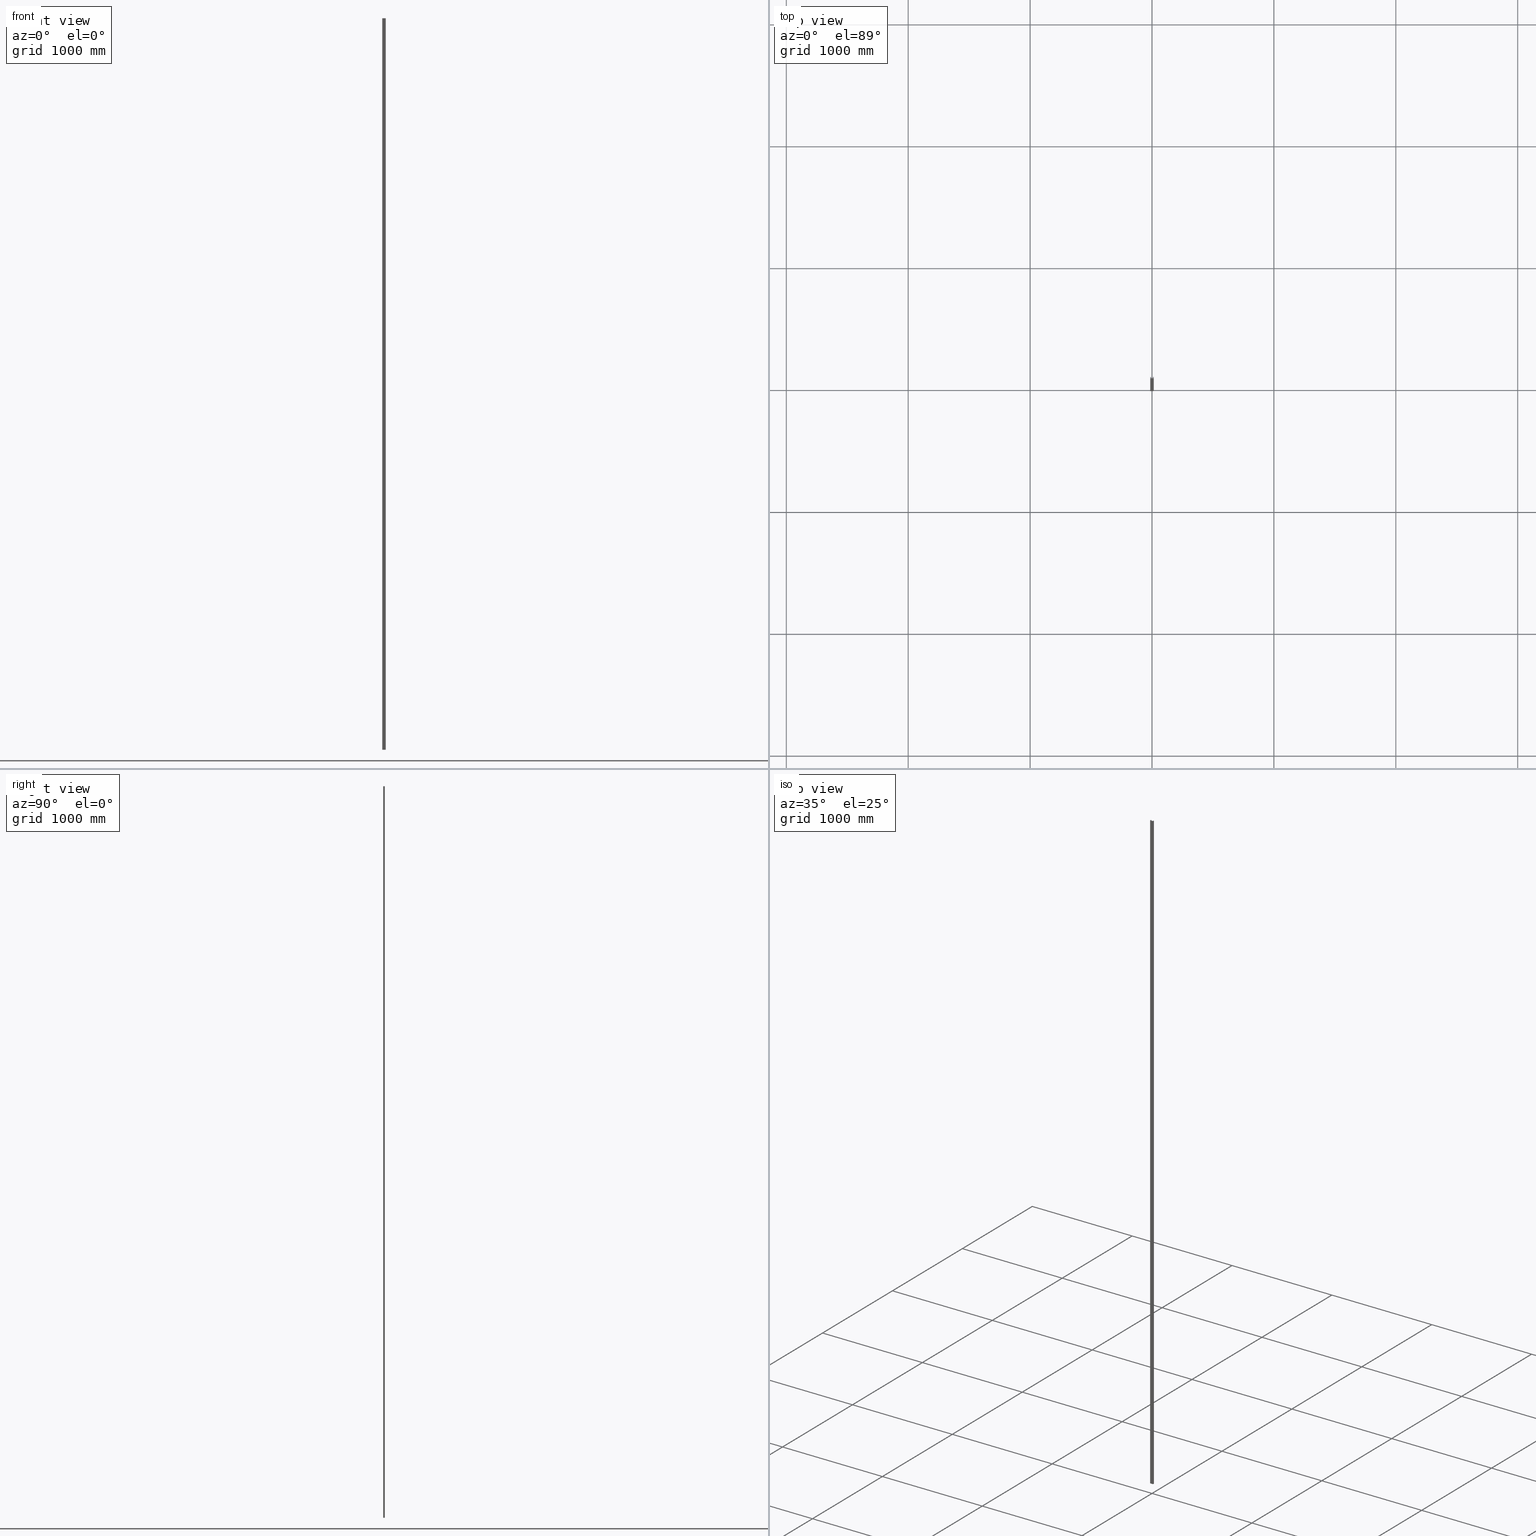
[diagram: canonical four-view strip — front | top / right | iso, engineering-drawing reading convention]
A machine part, canonical four-view strip (front | top / right | iso — engineering-drawing reading convention). The complete STEP part file that produces these views, byte-faithful:
ISO-10303-21;
HEADER;
/* Generated by software containing ST-Developer
 * from STEP Tools, Inc. (www.steptools.com) 
 */

FILE_DESCRIPTION(
/* description */ ('GUIDA LINEARE IL28 COMPLETA DI TONDINO'),
/* implementation_level */ '2;1');

FILE_NAME(
/* name */ 
'C:\\Users\\tecnico7\\Desktop\\NUOVI DISEGNI 3D\\bprgdd0000012.stp',
/* time_stamp */ '2022-12-07T15:51:20+01:00',
/* author */ ('tecnico7'),
/* organization */ (''),
/* preprocessor_version */ 'ST-DEVELOPER v18.1',
/* originating_system */ 'Autodesk Inventor 2022',
/* authorisation */ '');

FILE_SCHEMA (('AUTOMOTIVE_DESIGN { 1 0 10303 214 3 1 1 }'));
ENDSEC;

DATA;
#10=MECHANICAL_DESIGN_GEOMETRIC_PRESENTATION_REPRESENTATION('',(#27,#28),
#803);
#11=ITEM_DEFINED_TRANSFORMATION($,$,#493,#536);
#12=ITEM_DEFINED_TRANSFORMATION($,$,#530,#537);
#13=ITEM_DEFINED_TRANSFORMATION($,$,#530,#538);
#14=(
REPRESENTATION_RELATIONSHIP($,$,#818,#817)
REPRESENTATION_RELATIONSHIP_WITH_TRANSFORMATION(#11)
SHAPE_REPRESENTATION_RELATIONSHIP()
);
#15=(
REPRESENTATION_RELATIONSHIP($,$,#819,#817)
REPRESENTATION_RELATIONSHIP_WITH_TRANSFORMATION(#12)
SHAPE_REPRESENTATION_RELATIONSHIP()
);
#16=(
REPRESENTATION_RELATIONSHIP($,$,#819,#817)
REPRESENTATION_RELATIONSHIP_WITH_TRANSFORMATION(#13)
SHAPE_REPRESENTATION_RELATIONSHIP()
);
#17=CONTEXT_DEPENDENT_SHAPE_REPRESENTATION(#14,#814);
#18=CONTEXT_DEPENDENT_SHAPE_REPRESENTATION(#15,#815);
#19=CONTEXT_DEPENDENT_SHAPE_REPRESENTATION(#16,#816);
#20=NEXT_ASSEMBLY_USAGE_OCCURRENCE('DM01.2813.00A:1','DM01.2813.00A:1',
'DM01.2813.00A:1',#821,#822,'DM01.2813.00A:1');
#21=NEXT_ASSEMBLY_USAGE_OCCURRENCE('959540008104:1','959540008104:1',
'959540008104:1',#821,#823,'959540008104:1');
#22=NEXT_ASSEMBLY_USAGE_OCCURRENCE('959540008104:2','959540008104:2',
'959540008104:2',#821,#823,'959540008104:2');
#23=SHAPE_REPRESENTATION_RELATIONSHIP('SRR','None',#818,#25);
#24=SHAPE_REPRESENTATION_RELATIONSHIP('SRR','None',#819,#26);
#25=ADVANCED_BREP_SHAPE_REPRESENTATION('',(#29),#801);
#26=ADVANCED_BREP_SHAPE_REPRESENTATION('',(#30),#802);
#27=STYLED_ITEM('',(#456),#29);
#28=STYLED_ITEM('',(#457),#30);
#29=MANIFOLD_SOLID_BREP('Solido3',#428);
#30=MANIFOLD_SOLID_BREP('Solido1',#429);
#31=PLANE('',#497);
#32=PLANE('',#501);
#33=PLANE('',#508);
#34=PLANE('',#509);
#35=PLANE('',#516);
#36=PLANE('',#517);
#37=PLANE('',#520);
#38=PLANE('',#523);
#39=PLANE('',#526);
#40=PLANE('',#527);
#41=PLANE('',#528);
#42=PLANE('',#529);
#43=PLANE('',#531);
#44=PLANE('',#535);
#45=FACE_OUTER_BOUND('',#68,.T.);
#46=FACE_OUTER_BOUND('',#69,.T.);
#47=FACE_OUTER_BOUND('',#70,.T.);
#48=FACE_OUTER_BOUND('',#71,.T.);
#49=FACE_OUTER_BOUND('',#72,.T.);
#50=FACE_OUTER_BOUND('',#73,.T.);
#51=FACE_OUTER_BOUND('',#74,.T.);
#52=FACE_OUTER_BOUND('',#75,.T.);
#53=FACE_OUTER_BOUND('',#76,.T.);
#54=FACE_OUTER_BOUND('',#77,.T.);
#55=FACE_OUTER_BOUND('',#78,.T.);
#56=FACE_OUTER_BOUND('',#79,.T.);
#57=FACE_OUTER_BOUND('',#80,.T.);
#58=FACE_OUTER_BOUND('',#81,.T.);
#59=FACE_OUTER_BOUND('',#82,.T.);
#60=FACE_OUTER_BOUND('',#83,.T.);
#61=FACE_OUTER_BOUND('',#84,.T.);
#62=FACE_OUTER_BOUND('',#85,.T.);
#63=FACE_OUTER_BOUND('',#86,.T.);
#64=FACE_OUTER_BOUND('',#87,.T.);
#65=FACE_OUTER_BOUND('',#88,.T.);
#66=FACE_OUTER_BOUND('',#89,.T.);
#67=FACE_OUTER_BOUND('',#90,.T.);
#68=EDGE_LOOP('',(#282,#283,#284,#285));
#69=EDGE_LOOP('',(#286,#287,#288,#289));
#70=EDGE_LOOP('',(#290,#291,#292,#293));
#71=EDGE_LOOP('',(#294,#295,#296,#297));
#72=EDGE_LOOP('',(#298,#299,#300,#301));
#73=EDGE_LOOP('',(#302,#303,#304,#305));
#74=EDGE_LOOP('',(#306,#307,#308,#309));
#75=EDGE_LOOP('',(#310,#311,#312,#313));
#76=EDGE_LOOP('',(#314,#315,#316,#317));
#77=EDGE_LOOP('',(#318,#319,#320,#321));
#78=EDGE_LOOP('',(#322,#323,#324,#325));
#79=EDGE_LOOP('',(#326,#327,#328,#329,#330,#331,#332,#333,#334,#335,#336,
#337,#338,#339,#340,#341,#342,#343));
#80=EDGE_LOOP('',(#344,#345,#346,#347,#348,#349,#350,#351,#352,#353,#354,
#355,#356,#357,#358,#359,#360,#361));
#81=EDGE_LOOP('',(#362,#363,#364,#365));
#82=EDGE_LOOP('',(#366,#367,#368,#369));
#83=EDGE_LOOP('',(#370,#371,#372,#373));
#84=EDGE_LOOP('',(#374,#375,#376,#377));
#85=EDGE_LOOP('',(#378,#379,#380,#381));
#86=EDGE_LOOP('',(#382,#383,#384,#385));
#87=EDGE_LOOP('',(#386,#387,#388,#389));
#88=EDGE_LOOP('',(#390));
#89=EDGE_LOOP('',(#391,#392,#393,#394));
#90=EDGE_LOOP('',(#395));
#91=LINE('',#679,#130);
#92=LINE('',#682,#131);
#93=LINE('',#685,#132);
#94=LINE('',#687,#133);
#95=LINE('',#688,#134);
#96=LINE('',#693,#135);
#97=LINE('',#697,#136);
#98=LINE('',#699,#137);
#99=LINE('',#700,#138);
#100=LINE('',#706,#139);
#101=LINE('',#709,#140);
#102=LINE('',#715,#141);
#103=LINE('',#718,#142);
#104=LINE('',#720,#143);
#105=LINE('',#721,#144);
#106=LINE('',#725,#145);
#107=LINE('',#727,#146);
#108=LINE('',#729,#147);
#109=LINE('',#730,#148);
#110=LINE('',#736,#149);
#111=LINE('',#739,#150);
#112=LINE('',#745,#151);
#113=LINE('',#747,#152);
#114=LINE('',#748,#153);
#115=LINE('',#752,#154);
#116=LINE('',#755,#155);
#117=LINE('',#757,#156);
#118=LINE('',#759,#157);
#119=LINE('',#760,#158);
#120=LINE('',#763,#159);
#121=LINE('',#765,#160);
#122=LINE('',#767,#161);
#123=LINE('',#768,#162);
#124=LINE('',#771,#163);
#125=LINE('',#774,#164);
#126=LINE('',#778,#165);
#127=LINE('',#780,#166);
#128=LINE('',#782,#167);
#129=LINE('',#791,#168);
#130=VECTOR('',#547,10.);
#131=VECTOR('',#550,10.);
#132=VECTOR('',#553,10.);
#133=VECTOR('',#554,10.);
#134=VECTOR('',#555,10.);
#135=VECTOR('',#560,10.);
#136=VECTOR('',#565,10.);
#137=VECTOR('',#566,10.);
#138=VECTOR('',#567,10.);
#139=VECTOR('',#572,10.);
#140=VECTOR('',#575,10.);
#141=VECTOR('',#582,10.);
#142=VECTOR('',#585,10.);
#143=VECTOR('',#586,10.);
#144=VECTOR('',#587,10.);
#145=VECTOR('',#590,10.);
#146=VECTOR('',#591,10.);
#147=VECTOR('',#592,10.);
#148=VECTOR('',#593,10.);
#149=VECTOR('',#598,10.);
#150=VECTOR('',#601,10.);
#151=VECTOR('',#610,10.);
#152=VECTOR('',#611,10.);
#153=VECTOR('',#612,10.);
#154=VECTOR('',#617,10.);
#155=VECTOR('',#620,10.);
#156=VECTOR('',#621,10.);
#157=VECTOR('',#622,10.);
#158=VECTOR('',#623,10.);
#159=VECTOR('',#626,10.);
#160=VECTOR('',#627,10.);
#161=VECTOR('',#628,10.);
#162=VECTOR('',#629,10.);
#163=VECTOR('',#632,10.);
#164=VECTOR('',#637,10.);
#165=VECTOR('',#644,10.);
#166=VECTOR('',#647,10.);
#167=VECTOR('',#650,10.);
#168=VECTOR('',#663,2.);
#169=CIRCLE('',#495,0.2);
#170=CIRCLE('',#496,0.2);
#171=CIRCLE('',#499,0.2);
#172=CIRCLE('',#500,0.2);
#173=CIRCLE('',#503,1.9);
#174=CIRCLE('',#504,1.9);
#175=CIRCLE('',#506,18.3999999999998);
#176=CIRCLE('',#507,18.3999999999998);
#177=CIRCLE('',#511,18.3999999999998);
#178=CIRCLE('',#512,18.3999999999998);
#179=CIRCLE('',#514,1.9);
#180=CIRCLE('',#515,1.9);
#181=CIRCLE('',#518,2.);
#182=CIRCLE('',#519,2.);
#183=CIRCLE('',#521,2.);
#184=CIRCLE('',#522,2.);
#185=CIRCLE('',#532,2.);
#186=CIRCLE('',#534,2.);
#187=VERTEX_POINT('',#675);
#188=VERTEX_POINT('',#676);
#189=VERTEX_POINT('',#678);
#190=VERTEX_POINT('',#680);
#191=VERTEX_POINT('',#684);
#192=VERTEX_POINT('',#686);
#193=VERTEX_POINT('',#690);
#194=VERTEX_POINT('',#692);
#195=VERTEX_POINT('',#696);
#196=VERTEX_POINT('',#698);
#197=VERTEX_POINT('',#702);
#198=VERTEX_POINT('',#703);
#199=VERTEX_POINT('',#705);
#200=VERTEX_POINT('',#707);
#201=VERTEX_POINT('',#711);
#202=VERTEX_POINT('',#713);
#203=VERTEX_POINT('',#717);
#204=VERTEX_POINT('',#719);
#205=VERTEX_POINT('',#723);
#206=VERTEX_POINT('',#724);
#207=VERTEX_POINT('',#726);
#208=VERTEX_POINT('',#728);
#209=VERTEX_POINT('',#732);
#210=VERTEX_POINT('',#733);
#211=VERTEX_POINT('',#735);
#212=VERTEX_POINT('',#737);
#213=VERTEX_POINT('',#744);
#214=VERTEX_POINT('',#746);
#215=VERTEX_POINT('',#751);
#216=VERTEX_POINT('',#754);
#217=VERTEX_POINT('',#756);
#218=VERTEX_POINT('',#758);
#219=VERTEX_POINT('',#762);
#220=VERTEX_POINT('',#764);
#221=VERTEX_POINT('',#766);
#222=VERTEX_POINT('',#769);
#223=VERTEX_POINT('',#786);
#224=VERTEX_POINT('',#789);
#225=EDGE_CURVE('',#187,#188,#169,.T.);
#226=EDGE_CURVE('',#188,#189,#91,.T.);
#227=EDGE_CURVE('',#189,#190,#170,.T.);
#228=EDGE_CURVE('',#190,#187,#92,.T.);
#229=EDGE_CURVE('',#191,#188,#93,.T.);
#230=EDGE_CURVE('',#192,#191,#94,.T.);
#231=EDGE_CURVE('',#189,#192,#95,.T.);
#232=EDGE_CURVE('',#191,#193,#171,.T.);
#233=EDGE_CURVE('',#193,#194,#96,.T.);
#234=EDGE_CURVE('',#194,#192,#172,.T.);
#235=EDGE_CURVE('',#195,#193,#97,.T.);
#236=EDGE_CURVE('',#195,#196,#98,.T.);
#237=EDGE_CURVE('',#194,#196,#99,.T.);
#238=EDGE_CURVE('',#197,#198,#173,.T.);
#239=EDGE_CURVE('',#199,#197,#100,.T.);
#240=EDGE_CURVE('',#200,#199,#174,.T.);
#241=EDGE_CURVE('',#200,#198,#101,.T.);
#242=EDGE_CURVE('',#198,#201,#175,.T.);
#243=EDGE_CURVE('',#202,#200,#176,.T.);
#244=EDGE_CURVE('',#201,#202,#102,.T.);
#245=EDGE_CURVE('',#203,#197,#103,.T.);
#246=EDGE_CURVE('',#203,#204,#104,.T.);
#247=EDGE_CURVE('',#199,#204,#105,.T.);
#248=EDGE_CURVE('',#205,#206,#106,.T.);
#249=EDGE_CURVE('',#207,#205,#107,.T.);
#250=EDGE_CURVE('',#208,#207,#108,.T.);
#251=EDGE_CURVE('',#208,#206,#109,.T.);
#252=EDGE_CURVE('',#209,#210,#177,.T.);
#253=EDGE_CURVE('',#211,#209,#110,.T.);
#254=EDGE_CURVE('',#212,#211,#178,.T.);
#255=EDGE_CURVE('',#212,#210,#111,.T.);
#256=EDGE_CURVE('',#210,#205,#179,.T.);
#257=EDGE_CURVE('',#207,#212,#180,.T.);
#258=EDGE_CURVE('',#213,#209,#112,.T.);
#259=EDGE_CURVE('',#214,#213,#113,.T.);
#260=EDGE_CURVE('',#211,#214,#114,.T.);
#261=EDGE_CURVE('',#204,#195,#181,.T.);
#262=EDGE_CURVE('',#187,#215,#115,.T.);
#263=EDGE_CURVE('',#215,#208,#182,.T.);
#264=EDGE_CURVE('',#214,#216,#116,.T.);
#265=EDGE_CURVE('',#216,#217,#117,.T.);
#266=EDGE_CURVE('',#217,#218,#118,.T.);
#267=EDGE_CURVE('',#218,#202,#119,.T.);
#268=EDGE_CURVE('',#201,#219,#120,.T.);
#269=EDGE_CURVE('',#219,#220,#121,.T.);
#270=EDGE_CURVE('',#220,#221,#122,.T.);
#271=EDGE_CURVE('',#221,#213,#123,.T.);
#272=EDGE_CURVE('',#206,#222,#183,.T.);
#273=EDGE_CURVE('',#222,#190,#124,.T.);
#274=EDGE_CURVE('',#196,#203,#184,.T.);
#275=EDGE_CURVE('',#222,#215,#125,.T.);
#276=EDGE_CURVE('',#218,#219,#126,.T.);
#277=EDGE_CURVE('',#216,#221,#127,.T.);
#278=EDGE_CURVE('',#220,#217,#128,.T.);
#279=EDGE_CURVE('',#223,#223,#185,.T.);
#280=EDGE_CURVE('',#224,#224,#186,.T.);
#281=EDGE_CURVE('',#224,#223,#129,.T.);
#282=ORIENTED_EDGE('',*,*,#225,.T.);
#283=ORIENTED_EDGE('',*,*,#226,.T.);
#284=ORIENTED_EDGE('',*,*,#227,.T.);
#285=ORIENTED_EDGE('',*,*,#228,.T.);
#286=ORIENTED_EDGE('',*,*,#226,.F.);
#287=ORIENTED_EDGE('',*,*,#229,.F.);
#288=ORIENTED_EDGE('',*,*,#230,.F.);
#289=ORIENTED_EDGE('',*,*,#231,.F.);
#290=ORIENTED_EDGE('',*,*,#232,.T.);
#291=ORIENTED_EDGE('',*,*,#233,.T.);
#292=ORIENTED_EDGE('',*,*,#234,.T.);
#293=ORIENTED_EDGE('',*,*,#230,.T.);
#294=ORIENTED_EDGE('',*,*,#233,.F.);
#295=ORIENTED_EDGE('',*,*,#235,.F.);
#296=ORIENTED_EDGE('',*,*,#236,.T.);
#297=ORIENTED_EDGE('',*,*,#237,.F.);
#298=ORIENTED_EDGE('',*,*,#238,.F.);
#299=ORIENTED_EDGE('',*,*,#239,.F.);
#300=ORIENTED_EDGE('',*,*,#240,.F.);
#301=ORIENTED_EDGE('',*,*,#241,.T.);
#302=ORIENTED_EDGE('',*,*,#242,.F.);
#303=ORIENTED_EDGE('',*,*,#241,.F.);
#304=ORIENTED_EDGE('',*,*,#243,.F.);
#305=ORIENTED_EDGE('',*,*,#244,.F.);
#306=ORIENTED_EDGE('',*,*,#245,.F.);
#307=ORIENTED_EDGE('',*,*,#246,.T.);
#308=ORIENTED_EDGE('',*,*,#247,.F.);
#309=ORIENTED_EDGE('',*,*,#239,.T.);
#310=ORIENTED_EDGE('',*,*,#248,.F.);
#311=ORIENTED_EDGE('',*,*,#249,.F.);
#312=ORIENTED_EDGE('',*,*,#250,.F.);
#313=ORIENTED_EDGE('',*,*,#251,.T.);
#314=ORIENTED_EDGE('',*,*,#252,.F.);
#315=ORIENTED_EDGE('',*,*,#253,.F.);
#316=ORIENTED_EDGE('',*,*,#254,.F.);
#317=ORIENTED_EDGE('',*,*,#255,.T.);
#318=ORIENTED_EDGE('',*,*,#256,.F.);
#319=ORIENTED_EDGE('',*,*,#255,.F.);
#320=ORIENTED_EDGE('',*,*,#257,.F.);
#321=ORIENTED_EDGE('',*,*,#249,.T.);
#322=ORIENTED_EDGE('',*,*,#253,.T.);
#323=ORIENTED_EDGE('',*,*,#258,.F.);
#324=ORIENTED_EDGE('',*,*,#259,.F.);
#325=ORIENTED_EDGE('',*,*,#260,.F.);
#326=ORIENTED_EDGE('',*,*,#243,.T.);
#327=ORIENTED_EDGE('',*,*,#240,.T.);
#328=ORIENTED_EDGE('',*,*,#247,.T.);
#329=ORIENTED_EDGE('',*,*,#261,.T.);
#330=ORIENTED_EDGE('',*,*,#235,.T.);
#331=ORIENTED_EDGE('',*,*,#232,.F.);
#332=ORIENTED_EDGE('',*,*,#229,.T.);
#333=ORIENTED_EDGE('',*,*,#225,.F.);
#334=ORIENTED_EDGE('',*,*,#262,.T.);
#335=ORIENTED_EDGE('',*,*,#263,.T.);
#336=ORIENTED_EDGE('',*,*,#250,.T.);
#337=ORIENTED_EDGE('',*,*,#257,.T.);
#338=ORIENTED_EDGE('',*,*,#254,.T.);
#339=ORIENTED_EDGE('',*,*,#260,.T.);
#340=ORIENTED_EDGE('',*,*,#264,.T.);
#341=ORIENTED_EDGE('',*,*,#265,.T.);
#342=ORIENTED_EDGE('',*,*,#266,.T.);
#343=ORIENTED_EDGE('',*,*,#267,.T.);
#344=ORIENTED_EDGE('',*,*,#245,.T.);
#345=ORIENTED_EDGE('',*,*,#238,.T.);
#346=ORIENTED_EDGE('',*,*,#242,.T.);
#347=ORIENTED_EDGE('',*,*,#268,.T.);
#348=ORIENTED_EDGE('',*,*,#269,.T.);
#349=ORIENTED_EDGE('',*,*,#270,.T.);
#350=ORIENTED_EDGE('',*,*,#271,.T.);
#351=ORIENTED_EDGE('',*,*,#258,.T.);
#352=ORIENTED_EDGE('',*,*,#252,.T.);
#353=ORIENTED_EDGE('',*,*,#256,.T.);
#354=ORIENTED_EDGE('',*,*,#248,.T.);
#355=ORIENTED_EDGE('',*,*,#272,.T.);
#356=ORIENTED_EDGE('',*,*,#273,.T.);
#357=ORIENTED_EDGE('',*,*,#227,.F.);
#358=ORIENTED_EDGE('',*,*,#231,.T.);
#359=ORIENTED_EDGE('',*,*,#234,.F.);
#360=ORIENTED_EDGE('',*,*,#237,.T.);
#361=ORIENTED_EDGE('',*,*,#274,.T.);
#362=ORIENTED_EDGE('',*,*,#228,.F.);
#363=ORIENTED_EDGE('',*,*,#273,.F.);
#364=ORIENTED_EDGE('',*,*,#275,.T.);
#365=ORIENTED_EDGE('',*,*,#262,.F.);
#366=ORIENTED_EDGE('',*,*,#274,.F.);
#367=ORIENTED_EDGE('',*,*,#236,.F.);
#368=ORIENTED_EDGE('',*,*,#261,.F.);
#369=ORIENTED_EDGE('',*,*,#246,.F.);
#370=ORIENTED_EDGE('',*,*,#272,.F.);
#371=ORIENTED_EDGE('',*,*,#251,.F.);
#372=ORIENTED_EDGE('',*,*,#263,.F.);
#373=ORIENTED_EDGE('',*,*,#275,.F.);
#374=ORIENTED_EDGE('',*,*,#244,.T.);
#375=ORIENTED_EDGE('',*,*,#267,.F.);
#376=ORIENTED_EDGE('',*,*,#276,.T.);
#377=ORIENTED_EDGE('',*,*,#268,.F.);
#378=ORIENTED_EDGE('',*,*,#277,.F.);
#379=ORIENTED_EDGE('',*,*,#264,.F.);
#380=ORIENTED_EDGE('',*,*,#259,.T.);
#381=ORIENTED_EDGE('',*,*,#271,.F.);
#382=ORIENTED_EDGE('',*,*,#276,.F.);
#383=ORIENTED_EDGE('',*,*,#266,.F.);
#384=ORIENTED_EDGE('',*,*,#278,.F.);
#385=ORIENTED_EDGE('',*,*,#269,.F.);
#386=ORIENTED_EDGE('',*,*,#278,.T.);
#387=ORIENTED_EDGE('',*,*,#265,.F.);
#388=ORIENTED_EDGE('',*,*,#277,.T.);
#389=ORIENTED_EDGE('',*,*,#270,.F.);
#390=ORIENTED_EDGE('',*,*,#279,.T.);
#391=ORIENTED_EDGE('',*,*,#280,.F.);
#392=ORIENTED_EDGE('',*,*,#281,.T.);
#393=ORIENTED_EDGE('',*,*,#279,.F.);
#394=ORIENTED_EDGE('',*,*,#281,.F.);
#395=ORIENTED_EDGE('',*,*,#280,.T.);
#396=CYLINDRICAL_SURFACE('',#494,0.2);
#397=CYLINDRICAL_SURFACE('',#498,0.2);
#398=CYLINDRICAL_SURFACE('',#502,1.9);
#399=CYLINDRICAL_SURFACE('',#505,18.3999999999998);
#400=CYLINDRICAL_SURFACE('',#510,18.3999999999998);
#401=CYLINDRICAL_SURFACE('',#513,1.9);
#402=CYLINDRICAL_SURFACE('',#524,2.);
#403=CYLINDRICAL_SURFACE('',#525,2.);
#404=CYLINDRICAL_SURFACE('',#533,2.);
#405=ADVANCED_FACE('',(#45),#396,.F.);
#406=ADVANCED_FACE('',(#46),#31,.F.);
#407=ADVANCED_FACE('',(#47),#397,.F.);
#408=ADVANCED_FACE('',(#48),#32,.F.);
#409=ADVANCED_FACE('',(#49),#398,.T.);
#410=ADVANCED_FACE('',(#50),#399,.T.);
#411=ADVANCED_FACE('',(#51),#33,.F.);
#412=ADVANCED_FACE('',(#52),#34,.F.);
#413=ADVANCED_FACE('',(#53),#400,.T.);
#414=ADVANCED_FACE('',(#54),#401,.T.);
#415=ADVANCED_FACE('',(#55),#35,.T.);
#416=ADVANCED_FACE('',(#56),#36,.T.);
#417=ADVANCED_FACE('',(#57),#37,.T.);
#418=ADVANCED_FACE('',(#58),#38,.F.);
#419=ADVANCED_FACE('',(#59),#402,.F.);
#420=ADVANCED_FACE('',(#60),#403,.F.);
#421=ADVANCED_FACE('',(#61),#39,.T.);
#422=ADVANCED_FACE('',(#62),#40,.T.);
#423=ADVANCED_FACE('',(#63),#41,.T.);
#424=ADVANCED_FACE('',(#64),#42,.T.);
#425=ADVANCED_FACE('',(#65),#43,.F.);
#426=ADVANCED_FACE('',(#66),#404,.T.);
#427=ADVANCED_FACE('',(#67),#44,.T.);
#428=CLOSED_SHELL('',(#405,#406,#407,#408,#409,#410,#411,#412,#413,#414,
#415,#416,#417,#418,#419,#420,#421,#422,#423,#424));
#429=CLOSED_SHELL('',(#425,#426,#427));
#430=DERIVED_UNIT_ELEMENT(#435,1.);
#431=DERIVED_UNIT_ELEMENT(#805,-3.);
#432=DERIVED_UNIT_ELEMENT(#435,1.);
#433=DERIVED_UNIT_ELEMENT(#805,-3.);
#434=DIMENSIONAL_EXPONENTS(1.,0.,0.,0.,0.,0.,0.);
#435=(
CONVERSION_BASED_UNIT('gram',#437)
MASS_UNIT()
NAMED_UNIT(#434)
);
#436=(
MASS_UNIT()
NAMED_UNIT(*)
SI_UNIT(.KILO.,.GRAM.)
);
#437=MASS_MEASURE_WITH_UNIT(MASS_MEASURE(0.001),#436);
#438=DERIVED_UNIT((#430,#431));
#439=DERIVED_UNIT((#432,#433));
#440=MEASURE_REPRESENTATION_ITEM('density measure',
POSITIVE_RATIO_MEASURE(2.7),#438);
#441=MEASURE_REPRESENTATION_ITEM('density measure',
POSITIVE_RATIO_MEASURE(7.87),#439);
#442=PROPERTY_DEFINITION_REPRESENTATION(#452,#446);
#443=PROPERTY_DEFINITION_REPRESENTATION(#453,#447);
#444=PROPERTY_DEFINITION_REPRESENTATION(#454,#448);
#445=PROPERTY_DEFINITION_REPRESENTATION(#455,#449);
#446=REPRESENTATION('material name',(#450),#801);
#447=REPRESENTATION('density',(#440),#801);
#448=REPRESENTATION('material name',(#451),#802);
#449=REPRESENTATION('density',(#441),#802);
#450=DESCRIPTIVE_REPRESENTATION_ITEM('Alluminio - 6060',
'Alluminio - 6060');
#451=DESCRIPTIVE_REPRESENTATION_ITEM('Acciaio 1 C40','Acciaio 1 C40');
#452=PROPERTY_DEFINITION('material property','material name',#822);
#453=PROPERTY_DEFINITION('material property','density of part',#822);
#454=PROPERTY_DEFINITION('material property','material name',#823);
#455=PROPERTY_DEFINITION('material property','density of part',#823);
#456=PRESENTATION_STYLE_ASSIGNMENT((#458));
#457=PRESENTATION_STYLE_ASSIGNMENT((#459));
#458=SURFACE_STYLE_USAGE(.BOTH.,#464);
#459=SURFACE_STYLE_USAGE(.BOTH.,#465);
#460=SURFACE_STYLE_RENDERING_WITH_PROPERTIES($,#472,(#462));
#461=SURFACE_STYLE_RENDERING_WITH_PROPERTIES($,#473,(#463));
#462=SURFACE_STYLE_TRANSPARENT(0.);
#463=SURFACE_STYLE_TRANSPARENT(0.);
#464=SURFACE_SIDE_STYLE('',(#466,#460));
#465=SURFACE_SIDE_STYLE('',(#467,#461));
#466=SURFACE_STYLE_FILL_AREA(#468);
#467=SURFACE_STYLE_FILL_AREA(#469);
#468=FILL_AREA_STYLE('',(#470));
#469=FILL_AREA_STYLE('',(#471));
#470=FILL_AREA_STYLE_COLOUR('',#472);
#471=FILL_AREA_STYLE_COLOUR('',#473);
#472=COLOUR_RGB('',0.698039215686274,0.698039215686274,0.698039215686274);
#473=COLOUR_RGB('',0.745098039215686,0.737254901960784,0.729411764705882);
#474=DATE_TIME_ROLE('creation_date');
#475=DATE_TIME_ROLE('creation_date');
#476=DATE_TIME_ROLE('creation_date');
#477=APPLIED_DATE_AND_TIME_ASSIGNMENT(#480,#474,(#821));
#478=APPLIED_DATE_AND_TIME_ASSIGNMENT(#481,#475,(#822));
#479=APPLIED_DATE_AND_TIME_ASSIGNMENT(#482,#476,(#823));
#480=DATE_AND_TIME(#483,#486);
#481=DATE_AND_TIME(#484,#487);
#482=DATE_AND_TIME(#485,#488);
#483=CALENDAR_DATE(2014,1,8);
#484=CALENDAR_DATE(2014,1,8);
#485=CALENDAR_DATE(2015,2,10);
#486=LOCAL_TIME(0,0,0.,#489);
#487=LOCAL_TIME(0,0,0.,#490);
#488=LOCAL_TIME(0,0,0.,#491);
#489=COORDINATED_UNIVERSAL_TIME_OFFSET(0,0,.BEHIND.);
#490=COORDINATED_UNIVERSAL_TIME_OFFSET(0,0,.BEHIND.);
#491=COORDINATED_UNIVERSAL_TIME_OFFSET(0,0,.BEHIND.);
#492=AXIS2_PLACEMENT_3D('placement',#672,#539,#540);
#493=AXIS2_PLACEMENT_3D('placement',#673,#541,#542);
#494=AXIS2_PLACEMENT_3D('',#674,#543,#544);
#495=AXIS2_PLACEMENT_3D('',#677,#545,#546);
#496=AXIS2_PLACEMENT_3D('',#681,#548,#549);
#497=AXIS2_PLACEMENT_3D('',#683,#551,#552);
#498=AXIS2_PLACEMENT_3D('',#689,#556,#557);
#499=AXIS2_PLACEMENT_3D('',#691,#558,#559);
#500=AXIS2_PLACEMENT_3D('',#694,#561,#562);
#501=AXIS2_PLACEMENT_3D('',#695,#563,#564);
#502=AXIS2_PLACEMENT_3D('',#701,#568,#569);
#503=AXIS2_PLACEMENT_3D('',#704,#570,#571);
#504=AXIS2_PLACEMENT_3D('',#708,#573,#574);
#505=AXIS2_PLACEMENT_3D('',#710,#576,#577);
#506=AXIS2_PLACEMENT_3D('',#712,#578,#579);
#507=AXIS2_PLACEMENT_3D('',#714,#580,#581);
#508=AXIS2_PLACEMENT_3D('',#716,#583,#584);
#509=AXIS2_PLACEMENT_3D('',#722,#588,#589);
#510=AXIS2_PLACEMENT_3D('',#731,#594,#595);
#511=AXIS2_PLACEMENT_3D('',#734,#596,#597);
#512=AXIS2_PLACEMENT_3D('',#738,#599,#600);
#513=AXIS2_PLACEMENT_3D('',#740,#602,#603);
#514=AXIS2_PLACEMENT_3D('',#741,#604,#605);
#515=AXIS2_PLACEMENT_3D('',#742,#606,#607);
#516=AXIS2_PLACEMENT_3D('',#743,#608,#609);
#517=AXIS2_PLACEMENT_3D('',#749,#613,#614);
#518=AXIS2_PLACEMENT_3D('',#750,#615,#616);
#519=AXIS2_PLACEMENT_3D('',#753,#618,#619);
#520=AXIS2_PLACEMENT_3D('',#761,#624,#625);
#521=AXIS2_PLACEMENT_3D('',#770,#630,#631);
#522=AXIS2_PLACEMENT_3D('',#772,#633,#634);
#523=AXIS2_PLACEMENT_3D('',#773,#635,#636);
#524=AXIS2_PLACEMENT_3D('',#775,#638,#639);
#525=AXIS2_PLACEMENT_3D('',#776,#640,#641);
#526=AXIS2_PLACEMENT_3D('',#777,#642,#643);
#527=AXIS2_PLACEMENT_3D('',#779,#645,#646);
#528=AXIS2_PLACEMENT_3D('',#781,#648,#649);
#529=AXIS2_PLACEMENT_3D('',#783,#651,#652);
#530=AXIS2_PLACEMENT_3D('placement',#784,#653,#654);
#531=AXIS2_PLACEMENT_3D('',#785,#655,#656);
#532=AXIS2_PLACEMENT_3D('',#787,#657,#658);
#533=AXIS2_PLACEMENT_3D('',#788,#659,#660);
#534=AXIS2_PLACEMENT_3D('',#790,#661,#662);
#535=AXIS2_PLACEMENT_3D('',#792,#664,#665);
#536=AXIS2_PLACEMENT_3D('',#793,#666,#667);
#537=AXIS2_PLACEMENT_3D('',#794,#668,#669);
#538=AXIS2_PLACEMENT_3D('',#795,#670,#671);
#539=DIRECTION('axis',(0.,0.,1.));
#540=DIRECTION('refdir',(1.,0.,0.));
#541=DIRECTION('axis',(0.,0.,1.));
#542=DIRECTION('refdir',(1.,0.,0.));
#543=DIRECTION('center_axis',(0.,0.,-1.));
#544=DIRECTION('ref_axis',(-0.707106781186548,-0.707106781186548,0.));
#545=DIRECTION('center_axis',(0.,0.,1.));
#546=DIRECTION('ref_axis',(-0.707106781186548,-0.707106781186548,0.));
#547=DIRECTION('',(0.,0.,-1.));
#548=DIRECTION('center_axis',(0.,0.,-1.));
#549=DIRECTION('ref_axis',(-0.707106781186548,-0.707106781186548,0.));
#550=DIRECTION('',(0.,0.,1.));
#551=DIRECTION('center_axis',(4.36604560245848E-16,-1.,0.));
#552=DIRECTION('ref_axis',(-1.,-4.36604560245848E-16,0.));
#553=DIRECTION('',(-1.,-4.36604560245848E-16,0.));
#554=DIRECTION('',(0.,0.,1.));
#555=DIRECTION('',(1.,4.36604560245848E-16,0.));
#556=DIRECTION('center_axis',(0.,0.,-1.));
#557=DIRECTION('ref_axis',(0.707106781186548,-0.707106781186548,0.));
#558=DIRECTION('center_axis',(0.,0.,1.));
#559=DIRECTION('ref_axis',(0.707106781186548,-0.707106781186548,0.));
#560=DIRECTION('',(0.,0.,-1.));
#561=DIRECTION('center_axis',(0.,0.,-1.));
#562=DIRECTION('ref_axis',(0.707106781186548,-0.707106781186548,0.));
#563=DIRECTION('center_axis',(1.,2.22044604925031E-16,0.));
#564=DIRECTION('ref_axis',(2.22044604925031E-16,-1.,0.));
#565=DIRECTION('',(2.22044604925031E-16,-1.,0.));
#566=DIRECTION('',(0.,0.,-1.));
#567=DIRECTION('',(-2.22044604925031E-16,1.,0.));
#568=DIRECTION('center_axis',(0.,0.,-1.));
#569=DIRECTION('ref_axis',(0.201325279992745,-0.979524441571441,0.));
#570=DIRECTION('center_axis',(0.,0.,-1.));
#571=DIRECTION('ref_axis',(0.201325279992745,-0.979524441571441,0.));
#572=DIRECTION('',(0.,0.,-1.));
#573=DIRECTION('center_axis',(0.,0.,1.));
#574=DIRECTION('ref_axis',(0.201325279992745,-0.979524441571441,0.));
#575=DIRECTION('',(0.,0.,-1.));
#576=DIRECTION('center_axis',(0.,0.,-1.));
#577=DIRECTION('ref_axis',(0.0292014013741061,-0.999573548148303,0.));
#578=DIRECTION('center_axis',(0.,0.,-1.));
#579=DIRECTION('ref_axis',(0.0292014013741061,-0.999573548148303,0.));
#580=DIRECTION('center_axis',(0.,0.,1.));
#581=DIRECTION('ref_axis',(0.0292014013741061,-0.999573548148303,0.));
#582=DIRECTION('',(0.,0.,1.));
#583=DIRECTION('center_axis',(0.951056516295154,-0.309016994374947,0.));
#584=DIRECTION('ref_axis',(-0.309016994374947,-0.951056516295154,0.));
#585=DIRECTION('',(0.309016994374947,0.951056516295154,0.));
#586=DIRECTION('',(0.,0.,1.));
#587=DIRECTION('',(-0.309016994374947,-0.951056516295154,0.));
#588=DIRECTION('center_axis',(-0.951056516295154,-0.309016994374947,0.));
#589=DIRECTION('ref_axis',(-0.309016994374947,0.951056516295154,0.));
#590=DIRECTION('',(0.309016994374947,-0.951056516295154,0.));
#591=DIRECTION('',(0.,0.,-1.));
#592=DIRECTION('',(-0.309016994374947,0.951056516295154,0.));
#593=DIRECTION('',(0.,0.,-1.));
#594=DIRECTION('center_axis',(0.,0.,-1.));
#595=DIRECTION('ref_axis',(-0.201325279992745,-0.979524441571441,0.));
#596=DIRECTION('center_axis',(0.,0.,-1.));
#597=DIRECTION('ref_axis',(-0.201325279992745,-0.979524441571441,0.));
#598=DIRECTION('',(0.,0.,-1.));
#599=DIRECTION('center_axis',(0.,0.,1.));
#600=DIRECTION('ref_axis',(-0.201325279992745,-0.979524441571441,0.));
#601=DIRECTION('',(0.,0.,-1.));
#602=DIRECTION('center_axis',(0.,0.,-1.));
#603=DIRECTION('ref_axis',(-0.951056516295154,-0.309016994374947,0.));
#604=DIRECTION('center_axis',(0.,0.,-1.));
#605=DIRECTION('ref_axis',(-0.951056516295154,-0.309016994374947,0.));
#606=DIRECTION('center_axis',(0.,0.,1.));
#607=DIRECTION('ref_axis',(-0.951056516295154,-0.309016994374947,0.));
#608=DIRECTION('center_axis',(-2.37904933848248E-16,1.,0.));
#609=DIRECTION('ref_axis',(-1.,-2.37904933848248E-16,0.));
#610=DIRECTION('',(1.,2.37904933848248E-16,0.));
#611=DIRECTION('',(0.,0.,-1.));
#612=DIRECTION('',(-1.,-2.37904933848248E-16,0.));
#613=DIRECTION('center_axis',(0.,0.,1.));
#614=DIRECTION('ref_axis',(1.,0.,0.));
#615=DIRECTION('center_axis',(0.,0.,-1.));
#616=DIRECTION('ref_axis',(-1.,0.,0.));
#617=DIRECTION('',(-6.66133814775094E-16,1.,0.));
#618=DIRECTION('center_axis',(0.,0.,-1.));
#619=DIRECTION('ref_axis',(-1.,0.,0.));
#620=DIRECTION('',(0.,-1.,0.));
#621=DIRECTION('',(1.,7.93016446160826E-17,0.));
#622=DIRECTION('',(0.,1.,0.));
#623=DIRECTION('',(-1.,-2.37904933848248E-16,0.));
#624=DIRECTION('center_axis',(0.,0.,-1.));
#625=DIRECTION('ref_axis',(-1.,0.,0.));
#626=DIRECTION('',(1.,2.37904933848248E-16,0.));
#627=DIRECTION('',(0.,-1.,0.));
#628=DIRECTION('',(-1.,-7.93016446160826E-17,0.));
#629=DIRECTION('',(0.,1.,0.));
#630=DIRECTION('center_axis',(0.,0.,1.));
#631=DIRECTION('ref_axis',(-1.,0.,0.));
#632=DIRECTION('',(6.66133814775094E-16,-1.,0.));
#633=DIRECTION('center_axis',(0.,0.,1.));
#634=DIRECTION('ref_axis',(-1.,0.,0.));
#635=DIRECTION('center_axis',(-1.,-6.66133814775094E-16,0.));
#636=DIRECTION('ref_axis',(-6.66133814775094E-16,1.,0.));
#637=DIRECTION('',(0.,0.,1.));
#638=DIRECTION('center_axis',(0.,0.,-1.));
#639=DIRECTION('ref_axis',(1.,1.22464679914735E-16,0.));
#640=DIRECTION('center_axis',(0.,0.,-1.));
#641=DIRECTION('ref_axis',(-1.,0.,0.));
#642=DIRECTION('center_axis',(-2.37904933848248E-16,1.,0.));
#643=DIRECTION('ref_axis',(-1.,-2.37904933848248E-16,0.));
#644=DIRECTION('',(0.,0.,-1.));
#645=DIRECTION('center_axis',(-1.,0.,0.));
#646=DIRECTION('ref_axis',(0.,-1.,0.));
#647=DIRECTION('',(0.,0.,-1.));
#648=DIRECTION('center_axis',(1.,0.,0.));
#649=DIRECTION('ref_axis',(0.,1.,0.));
#650=DIRECTION('',(0.,0.,1.));
#651=DIRECTION('center_axis',(7.93016446160826E-17,-1.,0.));
#652=DIRECTION('ref_axis',(1.,7.93016446160826E-17,0.));
#653=DIRECTION('axis',(0.,0.,1.));
#654=DIRECTION('refdir',(1.,0.,0.));
#655=DIRECTION('center_axis',(0.,0.,1.));
#656=DIRECTION('ref_axis',(1.,0.,0.));
#657=DIRECTION('center_axis',(0.,0.,-1.));
#658=DIRECTION('ref_axis',(-1.,0.,0.));
#659=DIRECTION('center_axis',(0.,0.,1.));
#660=DIRECTION('ref_axis',(-1.,0.,0.));
#661=DIRECTION('center_axis',(0.,0.,1.));
#662=DIRECTION('ref_axis',(-1.,0.,0.));
#663=DIRECTION('',(0.,0.,-1.));
#664=DIRECTION('center_axis',(0.,0.,1.));
#665=DIRECTION('ref_axis',(1.,0.,0.));
#666=DIRECTION('',(0.,0.,1.));
#667=DIRECTION('',(1.,0.,0.));
#668=DIRECTION('',(0.,0.,1.));
#669=DIRECTION('',(1.,0.,0.));
#670=DIRECTION('',(0.,0.,1.));
#671=DIRECTION('',(1.,0.,0.));
#672=CARTESIAN_POINT('',(0.,0.,0.));
#673=CARTESIAN_POINT('',(0.,0.,0.));
#674=CARTESIAN_POINT('Origin',(-8.69999999999999,-3.3,3000.));
#675=CARTESIAN_POINT('',(-8.89999999999999,-3.3,3000.));
#676=CARTESIAN_POINT('',(-8.69999999999999,-3.5,3000.));
#677=CARTESIAN_POINT('Origin',(-8.69999999999999,-3.3,3000.));
#678=CARTESIAN_POINT('',(-8.69999999999999,-3.5,-3000.));
#679=CARTESIAN_POINT('',(-8.69999999999999,-3.5,3000.));
#680=CARTESIAN_POINT('',(-8.89999999999999,-3.3,-3000.));
#681=CARTESIAN_POINT('Origin',(-8.69999999999999,-3.3,-3000.));
#682=CARTESIAN_POINT('',(-8.89999999999999,-3.3,3000.));
#683=CARTESIAN_POINT('Origin',(8.9,-3.49999999999999,3000.));
#684=CARTESIAN_POINT('',(8.7,-3.49999999999999,3000.));
#685=CARTESIAN_POINT('',(4.45,-3.5,3000.));
#686=CARTESIAN_POINT('',(8.7,-3.49999999999999,-3000.));
#687=CARTESIAN_POINT('',(8.7,-3.49999999999999,3000.));
#688=CARTESIAN_POINT('',(4.45,-3.5,-3000.));
#689=CARTESIAN_POINT('Origin',(8.7,-3.29999999999999,3000.));
#690=CARTESIAN_POINT('',(8.9,-3.29999999999999,3000.));
#691=CARTESIAN_POINT('Origin',(8.7,-3.29999999999999,3000.));
#692=CARTESIAN_POINT('',(8.9,-3.29999999999999,-3000.));
#693=CARTESIAN_POINT('',(8.9,-3.29999999999999,3000.));
#694=CARTESIAN_POINT('Origin',(8.7,-3.29999999999999,-3000.));
#695=CARTESIAN_POINT('Origin',(8.9,6.50000000000001,3000.));
#696=CARTESIAN_POINT('',(8.9,0.092121597166116,3000.));
#697=CARTESIAN_POINT('',(8.9,3.25000000000001,3000.));
#698=CARTESIAN_POINT('',(8.9,0.092121597166116,-3000.));
#699=CARTESIAN_POINT('',(8.9,0.092121597166116,3000.));
#700=CARTESIAN_POINT('',(8.9,3.25000000000001,-3000.));
#701=CARTESIAN_POINT('Origin',(11.0154386654033,4.27,3000.));
#702=CARTESIAN_POINT('',(9.2084312844425,4.8571322893124,-3000.));
#703=CARTESIAN_POINT('',(10.6329206334171,6.13109643898574,-3000.));
#704=CARTESIAN_POINT('Origin',(11.0154386654033,4.27,-3000.));
#705=CARTESIAN_POINT('',(9.2084312844425,4.8571322893124,3000.));
#706=CARTESIAN_POINT('',(9.2084312844425,4.8571322893124,3000.));
#707=CARTESIAN_POINT('',(10.6329206334171,6.13109643898574,3000.));
#708=CARTESIAN_POINT('Origin',(11.0154386654033,4.27,3000.));
#709=CARTESIAN_POINT('',(10.6329206334171,6.13109643898574,3000.));
#710=CARTESIAN_POINT('Origin',(14.3373057852835,-11.8921532859286,3000.));
#711=CARTESIAN_POINT('',(13.8000000000001,6.50000000000001,-3000.));
#712=CARTESIAN_POINT('Origin',(14.3373057852835,-11.8921532859286,-3000.));
#713=CARTESIAN_POINT('',(13.8,6.5,3000.));
#714=CARTESIAN_POINT('Origin',(14.3373057852835,-11.8921532859286,3000.));
#715=CARTESIAN_POINT('',(13.8000000000001,6.50000000000001,3000.));
#716=CARTESIAN_POINT('Origin',(9.2084312844425,4.8571322893124,3000.));
#717=CARTESIAN_POINT('',(8.9,3.9078784028339,-3000.));
#718=CARTESIAN_POINT('',(8.055030131471,1.30732854905306,-3000.));
#719=CARTESIAN_POINT('',(8.9,3.9078784028339,3000.));
#720=CARTESIAN_POINT('',(8.9,3.9078784028339,3000.));
#721=CARTESIAN_POINT('',(8.055030131471,1.30732854905306,3000.));
#722=CARTESIAN_POINT('Origin',(-8.9,3.9078784028339,3000.));
#723=CARTESIAN_POINT('',(-9.2084312844425,4.8571322893124,-3000.));
#724=CARTESIAN_POINT('',(-8.9,3.9078784028339,-3000.));
#725=CARTESIAN_POINT('',(-7.90081448924975,0.832701605813812,-3000.));
#726=CARTESIAN_POINT('',(-9.2084312844425,4.8571322893124,3000.));
#727=CARTESIAN_POINT('',(-9.2084312844425,4.8571322893124,3000.));
#728=CARTESIAN_POINT('',(-8.9,3.9078784028339,3000.));
#729=CARTESIAN_POINT('',(-7.90081448924975,0.832701605813812,3000.));
#730=CARTESIAN_POINT('',(-8.9,3.9078784028339,3000.));
#731=CARTESIAN_POINT('Origin',(-14.3373057852835,-11.8921532859286,3000.));
#732=CARTESIAN_POINT('',(-13.8,6.5,-3000.));
#733=CARTESIAN_POINT('',(-10.6329206334171,6.13109643898574,-3000.));
#734=CARTESIAN_POINT('Origin',(-14.3373057852835,-11.8921532859286,-3000.));
#735=CARTESIAN_POINT('',(-13.8,6.5,3000.));
#736=CARTESIAN_POINT('',(-13.7999999999999,6.5,3000.));
#737=CARTESIAN_POINT('',(-10.6329206334171,6.13109643898574,3000.));
#738=CARTESIAN_POINT('Origin',(-14.3373057852835,-11.8921532859286,3000.));
#739=CARTESIAN_POINT('',(-10.6329206334171,6.13109643898574,3000.));
#740=CARTESIAN_POINT('Origin',(-11.0154386654033,4.27,3000.));
#741=CARTESIAN_POINT('Origin',(-11.0154386654033,4.27,-3000.));
#742=CARTESIAN_POINT('Origin',(-11.0154386654033,4.27,3000.));
#743=CARTESIAN_POINT('Origin',(14.,6.5,0.));
#744=CARTESIAN_POINT('',(-14.,6.5,-3000.));
#745=CARTESIAN_POINT('',(-14.,6.5,-3000.));
#746=CARTESIAN_POINT('',(-14.,6.5,3000.));
#747=CARTESIAN_POINT('',(-14.,6.5,0.));
#748=CARTESIAN_POINT('',(-14.,6.5,3000.));
#749=CARTESIAN_POINT('Origin',(0.,0.,3000.));
#750=CARTESIAN_POINT('Origin',(9.49999999999999,2.00000000000001,3000.));
#751=CARTESIAN_POINT('',(-8.9,0.0921215971661177,3000.));
#752=CARTESIAN_POINT('',(-8.89999999999999,-1.75,3000.));
#753=CARTESIAN_POINT('Origin',(-9.49999999999999,2.00000000000001,3000.));
#754=CARTESIAN_POINT('',(-14.,-6.5,3000.));
#755=CARTESIAN_POINT('',(-14.,-6.5,3000.));
#756=CARTESIAN_POINT('',(14.,-6.5,3000.));
#757=CARTESIAN_POINT('',(14.,-6.5,3000.));
#758=CARTESIAN_POINT('',(14.,6.5,3000.));
#759=CARTESIAN_POINT('',(14.,6.5,3000.));
#760=CARTESIAN_POINT('',(-14.,6.5,3000.));
#761=CARTESIAN_POINT('Origin',(0.,0.,-3000.));
#762=CARTESIAN_POINT('',(14.,6.5,-3000.));
#763=CARTESIAN_POINT('',(-14.,6.5,-3000.));
#764=CARTESIAN_POINT('',(14.,-6.5,-3000.));
#765=CARTESIAN_POINT('',(14.,6.5,-3000.));
#766=CARTESIAN_POINT('',(-14.,-6.5,-3000.));
#767=CARTESIAN_POINT('',(14.,-6.5,-3000.));
#768=CARTESIAN_POINT('',(-14.,-6.5,-3000.));
#769=CARTESIAN_POINT('',(-8.9,0.0921215971661177,-3000.));
#770=CARTESIAN_POINT('Origin',(-9.49999999999999,2.00000000000001,-3000.));
#771=CARTESIAN_POINT('',(-8.89999999999999,-1.75,-3000.));
#772=CARTESIAN_POINT('Origin',(9.49999999999999,2.00000000000001,-3000.));
#773=CARTESIAN_POINT('Origin',(-8.89999999999999,-3.5,3000.));
#774=CARTESIAN_POINT('',(-8.9,0.0921215971661177,3000.));
#775=CARTESIAN_POINT('Origin',(9.49999999999999,2.00000000000001,3000.));
#776=CARTESIAN_POINT('Origin',(-9.49999999999999,2.00000000000001,3000.));
#777=CARTESIAN_POINT('Origin',(14.,6.5,0.));
#778=CARTESIAN_POINT('',(14.,6.5,0.));
#779=CARTESIAN_POINT('Origin',(-14.,6.5,0.));
#780=CARTESIAN_POINT('',(-14.,-6.5,0.));
#781=CARTESIAN_POINT('Origin',(14.,-6.5,0.));
#782=CARTESIAN_POINT('',(14.,-6.5,0.));
#783=CARTESIAN_POINT('Origin',(-14.,-6.5,0.));
#784=CARTESIAN_POINT('',(0.,0.,0.));
#785=CARTESIAN_POINT('Origin',(-1.9388312758347E-16,-2.89120579329468E-17,
-3000.));
#786=CARTESIAN_POINT('',(2.,2.44929359829471E-16,-3000.));
#787=CARTESIAN_POINT('Origin',(0.,0.,-3000.));
#788=CARTESIAN_POINT('Origin',(0.,0.,0.));
#789=CARTESIAN_POINT('',(2.,2.44929359829471E-16,3000.));
#790=CARTESIAN_POINT('Origin',(0.,0.,3000.));
#791=CARTESIAN_POINT('',(2.,2.44929359829471E-16,0.));
#792=CARTESIAN_POINT('Origin',(-1.9388312758347E-16,-2.89120579329468E-17,
3000.));
#793=CARTESIAN_POINT('',(0.,0.,0.));
#794=CARTESIAN_POINT('',(-9.49999999999999,2.00000000000001,0.));
#795=CARTESIAN_POINT('',(9.49999999999999,2.00000000000001,0.));
#796=UNCERTAINTY_MEASURE_WITH_UNIT(LENGTH_MEASURE(0.01),#804,
'DISTANCE_ACCURACY_VALUE',
'Maximum model space distance between geometric entities at asserted c
onnectivities');
#797=UNCERTAINTY_MEASURE_WITH_UNIT(LENGTH_MEASURE(0.01),#804,
'DISTANCE_ACCURACY_VALUE',
'Maximum model space distance between geometric entities at asserted c
onnectivities');
#798=UNCERTAINTY_MEASURE_WITH_UNIT(LENGTH_MEASURE(0.01),#804,
'DISTANCE_ACCURACY_VALUE',
'Maximum model space distance between geometric entities at asserted c
onnectivities');
#799=UNCERTAINTY_MEASURE_WITH_UNIT(LENGTH_MEASURE(0.01),#804,
'DISTANCE_ACCURACY_VALUE',
'Maximum model space distance between geometric entities at asserted c
onnectivities');
#800=(
GEOMETRIC_REPRESENTATION_CONTEXT(3)
GLOBAL_UNCERTAINTY_ASSIGNED_CONTEXT((#796))
GLOBAL_UNIT_ASSIGNED_CONTEXT((#804,#806,#807))
REPRESENTATION_CONTEXT('','3D')
);
#801=(
GEOMETRIC_REPRESENTATION_CONTEXT(3)
GLOBAL_UNCERTAINTY_ASSIGNED_CONTEXT((#797))
GLOBAL_UNIT_ASSIGNED_CONTEXT((#804,#806,#807))
REPRESENTATION_CONTEXT('','3D')
);
#802=(
GEOMETRIC_REPRESENTATION_CONTEXT(3)
GLOBAL_UNCERTAINTY_ASSIGNED_CONTEXT((#798))
GLOBAL_UNIT_ASSIGNED_CONTEXT((#804,#806,#807))
REPRESENTATION_CONTEXT('','3D')
);
#803=(
GEOMETRIC_REPRESENTATION_CONTEXT(3)
GLOBAL_UNCERTAINTY_ASSIGNED_CONTEXT((#799))
GLOBAL_UNIT_ASSIGNED_CONTEXT((#804,#806,#807))
REPRESENTATION_CONTEXT('','3D')
);
#804=(
LENGTH_UNIT()
NAMED_UNIT(*)
SI_UNIT(.MILLI.,.METRE.)
);
#805=(
LENGTH_UNIT()
NAMED_UNIT(*)
SI_UNIT(.CENTI.,.METRE.)
);
#806=(
NAMED_UNIT(*)
PLANE_ANGLE_UNIT()
SI_UNIT($,.RADIAN.)
);
#807=(
NAMED_UNIT(*)
SI_UNIT($,.STERADIAN.)
SOLID_ANGLE_UNIT()
);
#808=SHAPE_DEFINITION_REPRESENTATION(#811,#817);
#809=SHAPE_DEFINITION_REPRESENTATION(#812,#818);
#810=SHAPE_DEFINITION_REPRESENTATION(#813,#819);
#811=PRODUCT_DEFINITION_SHAPE('',$,#821);
#812=PRODUCT_DEFINITION_SHAPE('',$,#822);
#813=PRODUCT_DEFINITION_SHAPE('',$,#823);
#814=PRODUCT_DEFINITION_SHAPE($,$,#20);
#815=PRODUCT_DEFINITION_SHAPE($,$,#21);
#816=PRODUCT_DEFINITION_SHAPE($,$,#22);
#817=SHAPE_REPRESENTATION('',(#492,#536,#537,#538),#800);
#818=SHAPE_REPRESENTATION('',(#493),#801);
#819=SHAPE_REPRESENTATION('',(#530),#802);
#820=PRODUCT_DEFINITION_CONTEXT('part definition',#831,'design');
#821=PRODUCT_DEFINITION('DM01.IL28.00','DM01.IL28.00',#824,#820);
#822=PRODUCT_DEFINITION('DM01.2813.00A','DM01.2813.00A',#825,#820);
#823=PRODUCT_DEFINITION('ATFRT0000004','959540008104',#826,#820);
#824=PRODUCT_DEFINITION_FORMATION('A',$,#833);
#825=PRODUCT_DEFINITION_FORMATION('A',$,#834);
#826=PRODUCT_DEFINITION_FORMATION('B',$,#835);
#827=PRODUCT_RELATED_PRODUCT_CATEGORY('DM01.IL28.00','DM01.IL28.00',(#833));
#828=PRODUCT_RELATED_PRODUCT_CATEGORY('DM01.2813.00A','DM01.2813.00A',(#834));
#829=PRODUCT_RELATED_PRODUCT_CATEGORY('959540008104','959540008104',(#835));
#830=APPLICATION_PROTOCOL_DEFINITION('international standard',
'automotive_design',2009,#831);
#831=APPLICATION_CONTEXT(
'Core Data for Automotive Mechanical Design Process');
#832=PRODUCT_CONTEXT('part definition',#831,'mechanical');
#833=PRODUCT('DM01.IL28.00','DM01.IL28.00',
'GUIDA LINEARE IL28 COMPLETA DI TONDINO',(#832));
#834=PRODUCT('DM01.2813.00A','DM01.2813.00A',
'PROFILO 28X13 IL28 ALLUM. OXI-ARGENTO',(#832));
#835=PRODUCT('ATFRT0000004','959540008104',
'TRAFIL. TONDO RETT.TEMPR. D.4 ACCI.',(#832));
ENDSEC;
END-ISO-10303-21;
